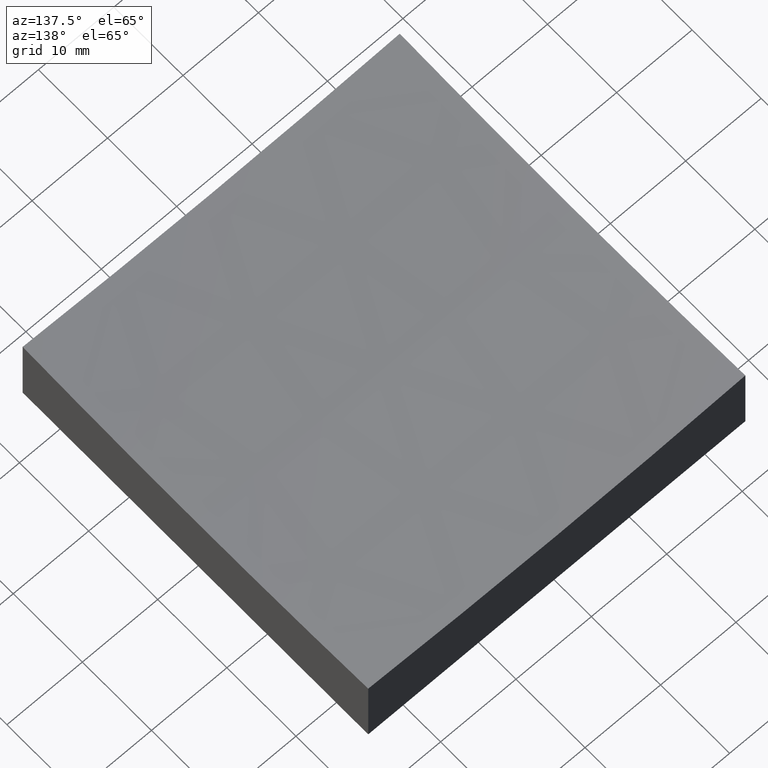
[diagram: clean part render]
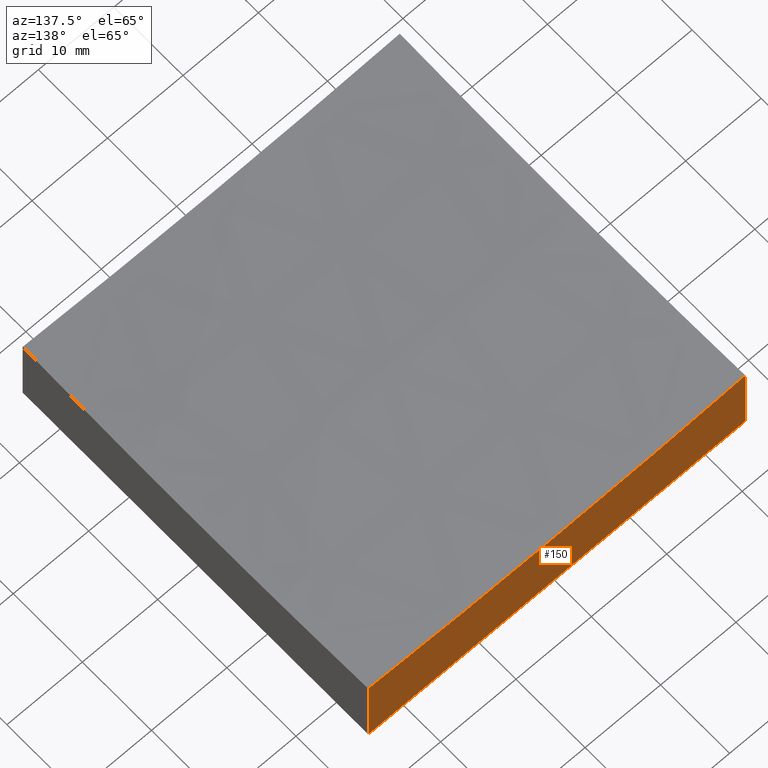
[diagram: same view with one face highlighted and labeled with its STEP entity id]
A machine part, auxiliary view. The second image highlights one B-rep face of the part: STEP entity #150.
In plain terms, the highlighted planar face has unit normal (0, 1, 0).
Its self-contained STEP definition (entity closure, byte-faithful):
#2 = ORIENTED_EDGE ( 'NONE', *, *, #15, .F. ) ;
#3 = ORIENTED_EDGE ( 'NONE', *, *, #105, .F. ) ;
#7 = FACE_OUTER_BOUND ( 'NONE', #158, .T. ) ;
#15 = EDGE_CURVE ( 'NONE', #101, #199, #18, .T. ) ;
#18 = LINE ( 'NONE', #67, #57 ) ;
#23 = CARTESIAN_POINT ( 'NONE',  ( 24.99999999999999645, 24.99999999999999645, 10.56556373726935760 ) ) ;
#27 = EDGE_CURVE ( 'NONE', #66, #63, #72, .T. ) ;
#39 = AXIS2_PLACEMENT_3D ( 'NONE', #124, #201, #183 ) ;
#40 = ORIENTED_EDGE ( 'NONE', *, *, #200, .F. ) ;
#57 = VECTOR ( 'NONE', #119, 1000.000000000000000 ) ;
#61 = ORIENTED_EDGE ( 'NONE', *, *, #27, .T. ) ;
#63 = VERTEX_POINT ( 'NONE', #149 ) ;
#66 = VERTEX_POINT ( 'NONE', #23 ) ;
#67 = CARTESIAN_POINT ( 'NONE',  ( -25.00000000000000355, 24.99999999999999645, 50.00000000000000000 ) ) ;
#69 = DIRECTION ( 'NONE',  ( 0.0000000000000000000, -0.0000000000000000000, 1.000000000000000000 ) ) ;
#72 = LINE ( 'NONE', #190, #211 ) ;
#79 = VECTOR ( 'NONE', #169, 1000.000000000000000 ) ;
#101 = VERTEX_POINT ( 'NONE', #220 ) ;
#105 = EDGE_CURVE ( 'NONE', #66, #101, #161, .T. ) ;
#116 = LINE ( 'NONE', #210, #79 ) ;
#119 = DIRECTION ( 'NONE',  ( -0.0000000000000000000, -0.0000000000000000000, -1.000000000000000000 ) ) ;
#124 = CARTESIAN_POINT ( 'NONE',  ( 5.008805408512674501E-14, 24.99999999999999645, 409.0000000000000568 ) ) ;
#133 = CARTESIAN_POINT ( 'NONE',  ( -25.00000000000000355, 24.99999999999999645, 0.0000000000000000000 ) ) ;
#149 = CARTESIAN_POINT ( 'NONE',  ( 24.99999999999999645, 24.99999999999999645, 0.0000000000000000000 ) ) ;
#150 = ADVANCED_FACE ( 'NONE', ( #7 ), #167, .T. ) ;
#158 = EDGE_LOOP ( 'NONE', ( #3, #61, #40, #2 ) ) ;
#161 = CIRCLE ( 'NONE', #39, 399.2179855667827724 ) ;
#163 = DIRECTION ( 'NONE',  ( -0.0000000000000000000, -0.0000000000000000000, -1.000000000000000000 ) ) ;
#165 = CARTESIAN_POINT ( 'NONE',  ( -25.00000000000000355, 24.99999999999999645, 50.00000000000000000 ) ) ;
#167 = PLANE ( 'NONE',  #173 ) ;
#169 = DIRECTION ( 'NONE',  ( 1.000000000000000000, 0.0000000000000000000, 0.0000000000000000000 ) ) ;
#173 = AXIS2_PLACEMENT_3D ( 'NONE', #165, #241, #69 ) ;
#183 = DIRECTION ( 'NONE',  ( 0.0000000000000000000, 0.0000000000000000000, 1.000000000000000000 ) ) ;
#190 = CARTESIAN_POINT ( 'NONE',  ( 24.99999999999999645, 24.99999999999999645, 50.00000000000000000 ) ) ;
#199 = VERTEX_POINT ( 'NONE', #133 ) ;
#200 = EDGE_CURVE ( 'NONE', #199, #63, #116, .T. ) ;
#201 = DIRECTION ( 'NONE',  ( 0.0000000000000000000, 1.000000000000000000, 0.0000000000000000000 ) ) ;
#210 = CARTESIAN_POINT ( 'NONE',  ( -25.00000000000000355, 24.99999999999999645, 0.0000000000000000000 ) ) ;
#211 = VECTOR ( 'NONE', #163, 1000.000000000000000 ) ;
#220 = CARTESIAN_POINT ( 'NONE',  ( -25.00000000000000711, 24.99999999999999645, 10.56556373726941267 ) ) ;
#241 = DIRECTION ( 'NONE',  ( 0.0000000000000000000, 1.000000000000000000, 0.0000000000000000000 ) ) ;